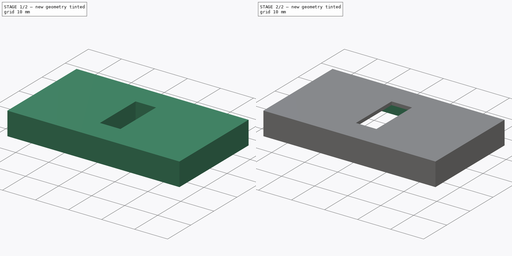
[diagram: build sequence overview — one tinted view per stage of 2, left to right]
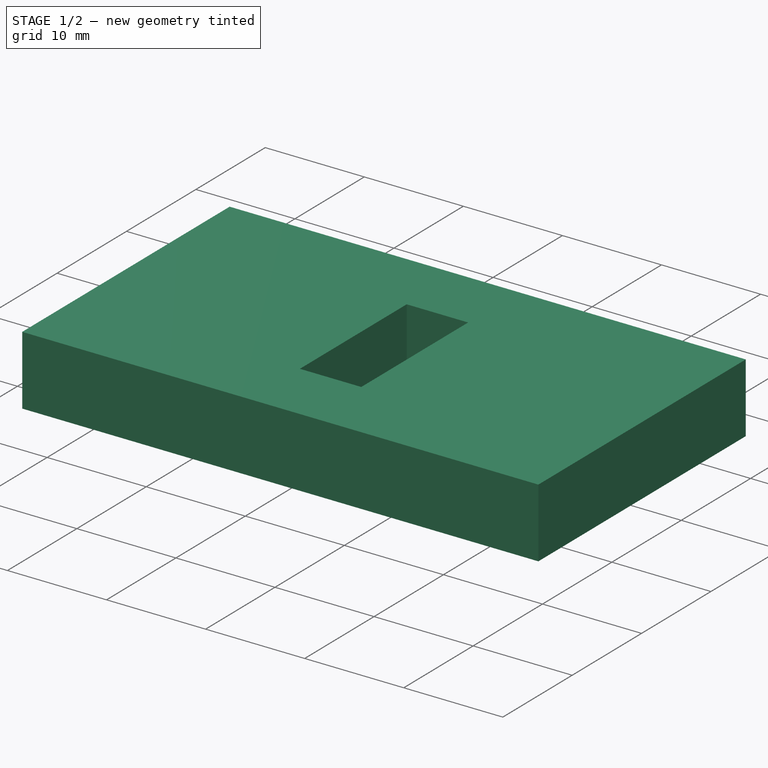
[diagram: stage 1 of 2 — iso view after this stage's code; geometry added in this stage tinted green]
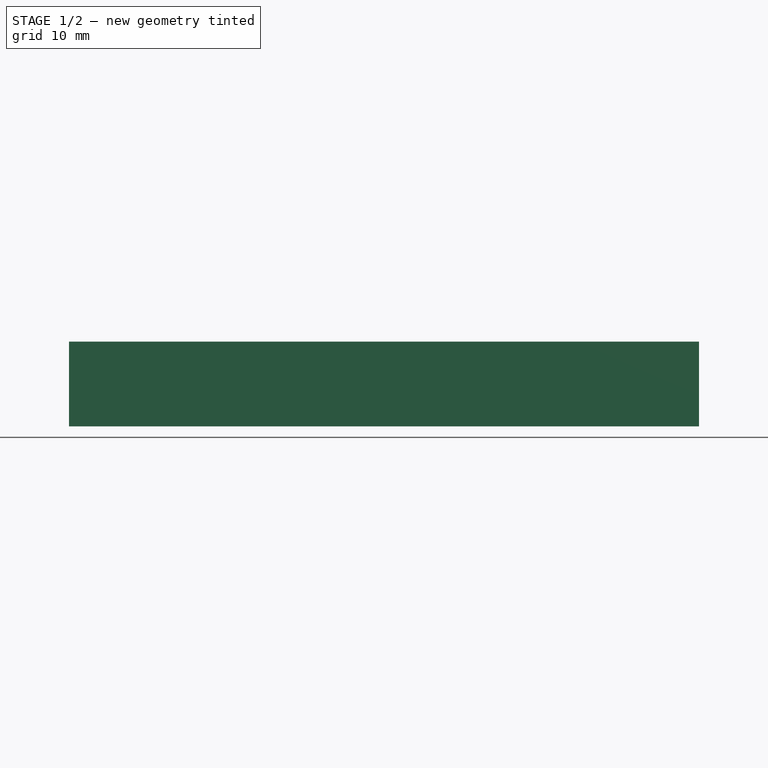
[diagram: stage 1 of 2 — front view after this stage's code; geometry added in this stage tinted green]
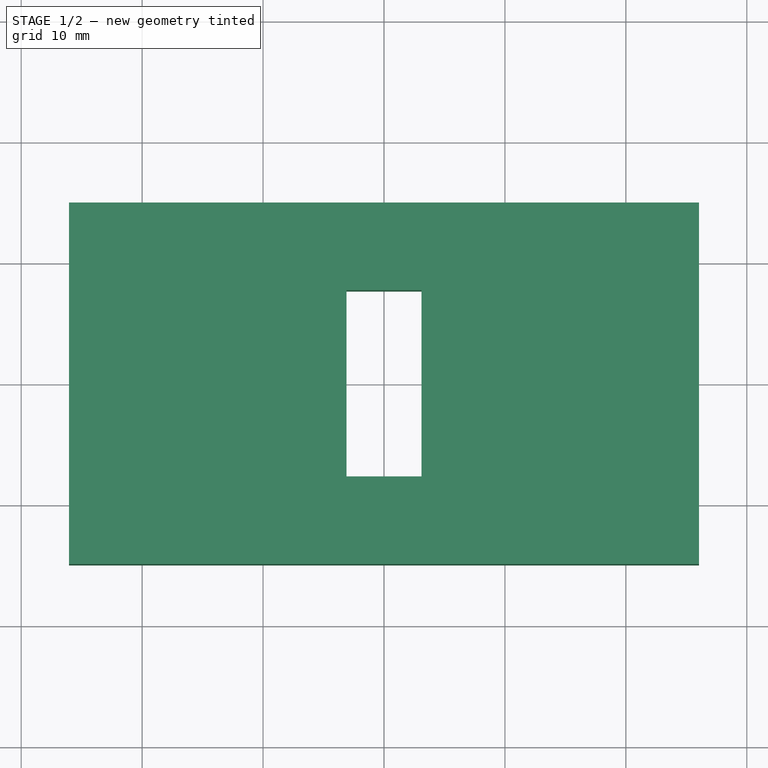
[diagram: stage 1 of 2 — top view after this stage's code; geometry added in this stage tinted green]
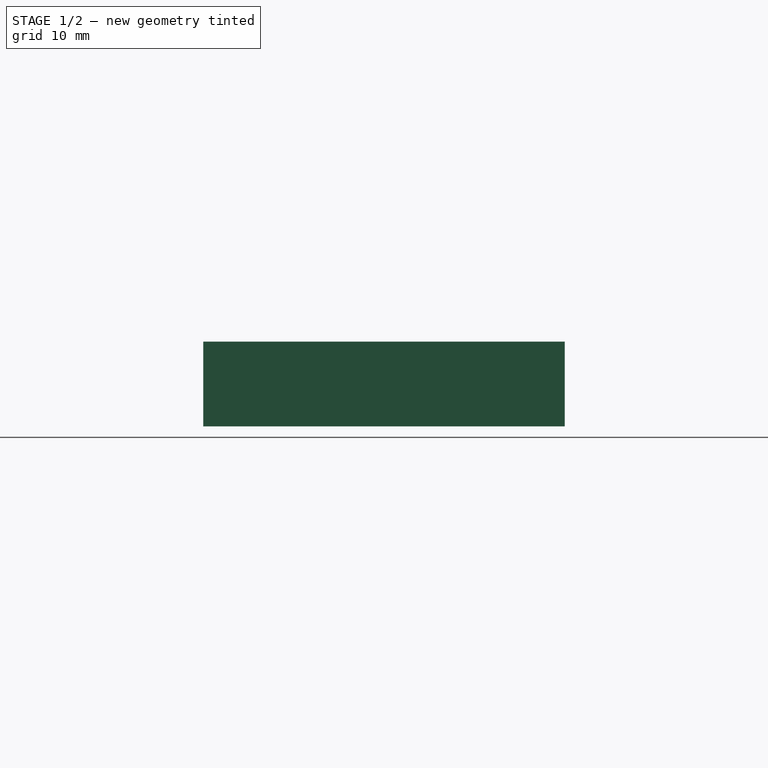
[diagram: stage 1 of 2 — right view after this stage's code; geometry added in this stage tinted green]
FCSTD DOCUMENT  (FreeCAD 0.18.4R)
Label: reset_unlock_button_cache
License: All rights reserved
LicenseURL: http://en.wikipedia.org/wiki/All_rights_reserved
objects: Sketcher::SketchObject×2, PartDesign::Pad×1, PartDesign::Pocket×1, PartDesign::Body×1
note: 7 computed .brp shape members not serialized (recipe doc carries the construction recipe); baked Part::Feature solids carry a one-line shape summary decoded from their .brp

FEATURE [Sketcher::SketchObject] Sketch
  MapMode = 5
  Support = -> [XY_Plane]
  sketch-geometry (8):
    g0: LineSegment StartX=-26.05 StartY=14.95 StartZ=0 EndX=26.05 EndY=14.95 EndZ=0
    g1: LineSegment StartX=26.05 StartY=14.95 StartZ=0 EndX=26.05 EndY=-14.95 EndZ=0
    g2: LineSegment StartX=26.05 StartY=-14.95 StartZ=0 EndX=-26.05 EndY=-14.95 EndZ=0
    g3: LineSegment StartX=-26.05 StartY=-14.95 StartZ=0 EndX=-26.05 EndY=14.95 EndZ=0
    g4: LineSegment StartX=-3.1 StartY=7.7 StartZ=0 EndX=3.1 EndY=7.7 EndZ=0
    g5: LineSegment StartX=3.1 StartY=7.7 StartZ=0 EndX=3.1 EndY=-7.7 EndZ=0
    g6: LineSegment StartX=3.1 StartY=-7.7 StartZ=0 EndX=-3.1 EndY=-7.7 EndZ=0
    g7: LineSegment StartX=-3.1 StartY=-7.7 StartZ=0 EndX=-3.1 EndY=7.7 EndZ=0
  constraints (20):
    c: Coincident(g0,g1)
    c: Coincident(g1,g2)
    c: Coincident(g2,g3)
    c: Coincident(g3,g0)
    c: Horizontal(g2)
    c: Vertical(g1)
    c: DistanceX(g0,g0) = 52.1
    c: DistanceY(g3,g3) = 29.9
    c: Symmetric(g0,g2,g-1)
    c: Symmetric(g0,g0,g-2)
    c: Coincident(g4,g5)
    c: Coincident(g5,g6)
    c: Coincident(g6,g7)
    c: Coincident(g7,g4)
    c: Horizontal(g6)
    c: Vertical(g5)
    c: DistanceX(g4,g4) = 6.2
    c: DistanceY(g7,g7) = 15.4
    c: Symmetric(g4,g6,g-1)
    c: Symmetric(g4,g4,g-2)
FEATURE [PartDesign::Pad] Pad
  Length = 7
  Length2 = 100
  Profile = -> Sketch
  Type = 0
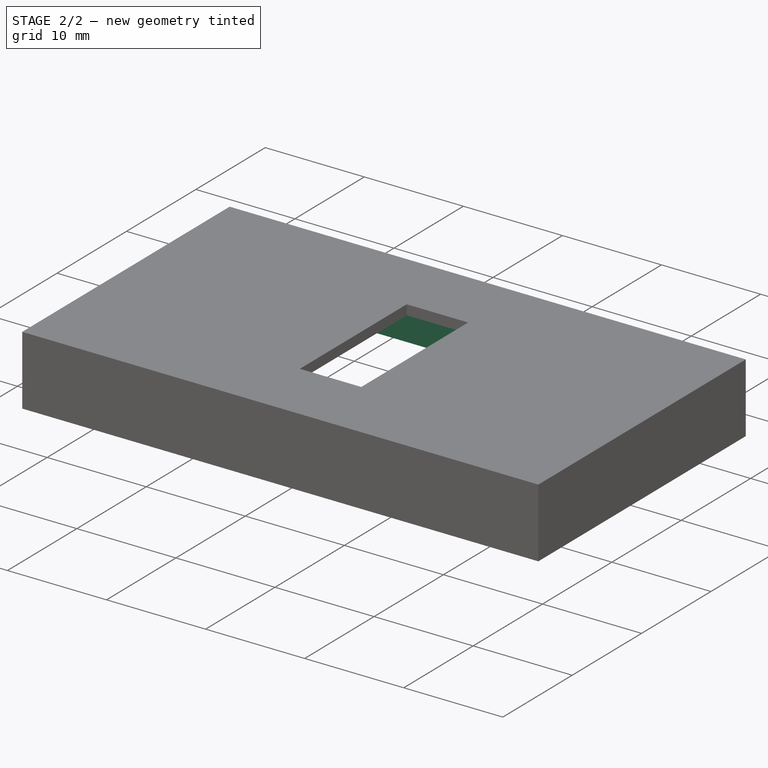
[diagram: stage 2 of 2 — iso view after this stage's code; geometry added in this stage tinted green]
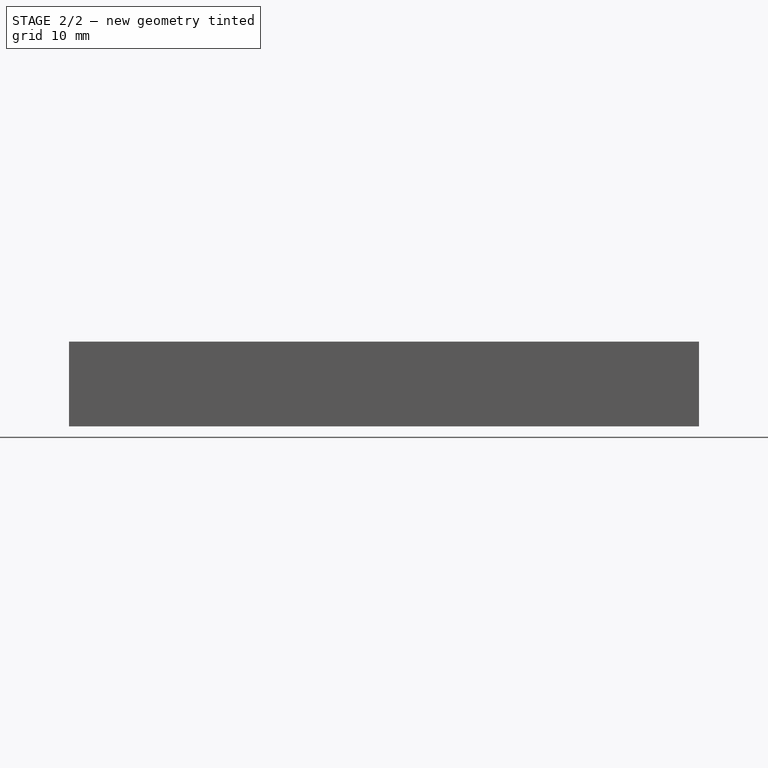
[diagram: stage 2 of 2 — front view after this stage's code; geometry added in this stage tinted green]
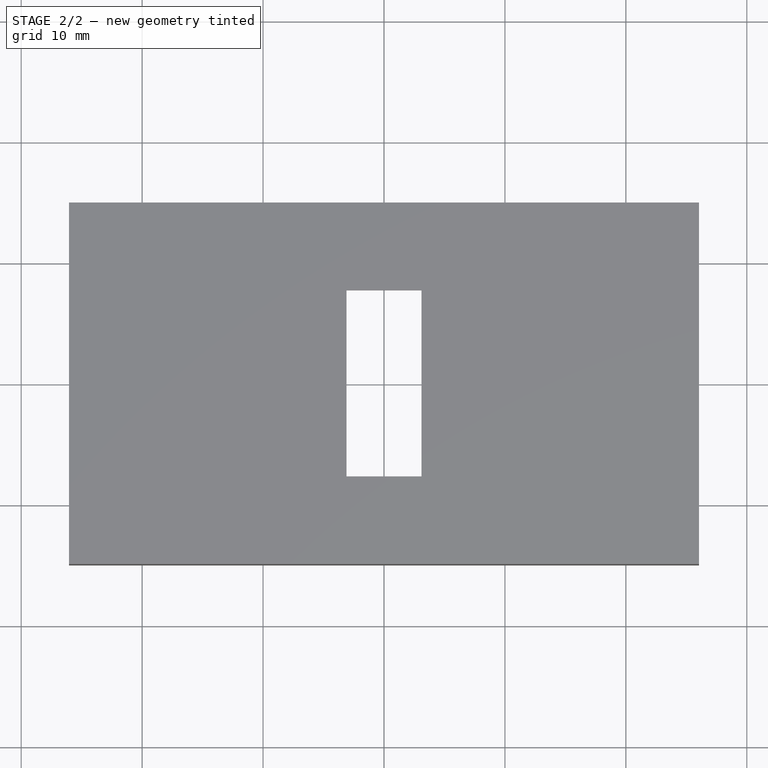
[diagram: stage 2 of 2 — top view after this stage's code; geometry added in this stage tinted green]
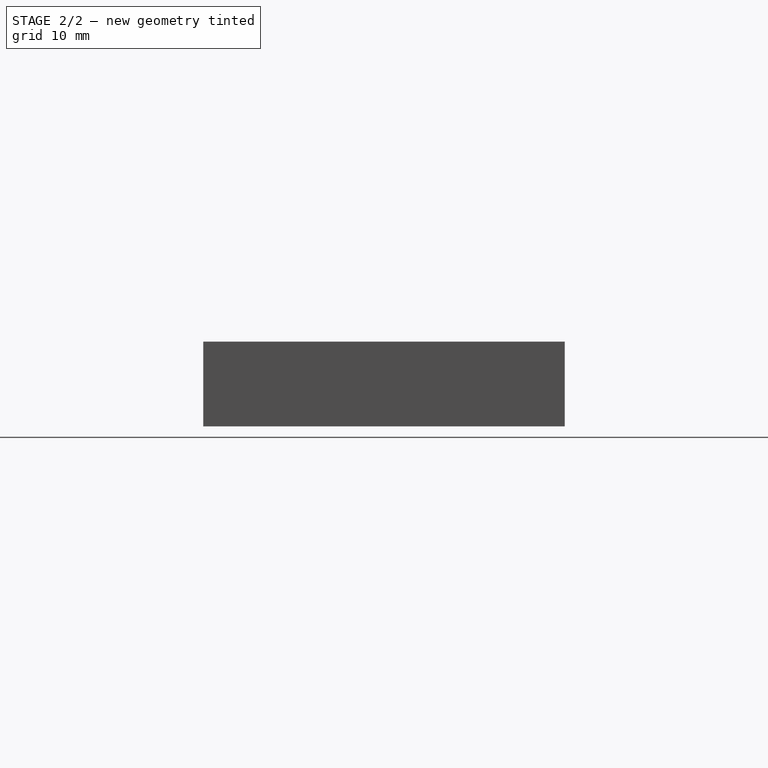
[diagram: stage 2 of 2 — right view after this stage's code; geometry added in this stage tinted green]
FEATURE [Sketcher::SketchObject] Sketch001
  ExternalGeometry = -> [Pad]
  MapMode = 5
  Placement = pos=(0,0,0) rot=(1,0,0;3.14159rad)
  Support = -> [Pad]
  sketch-geometry (4):
    g0: LineSegment StartX=-25.05 StartY=13.95 StartZ=0 EndX=25.05 EndY=13.95 EndZ=0
    g1: LineSegment StartX=25.05 StartY=13.95 StartZ=0 EndX=25.05 EndY=-13.95 EndZ=0
    g2: LineSegment StartX=25.05 StartY=-13.95 StartZ=0 EndX=-25.05 EndY=-13.95 EndZ=0
    g3: LineSegment StartX=-25.05 StartY=-13.95 StartZ=0 EndX=-25.05 EndY=13.95 EndZ=0
  constraints (12):
    c: Coincident(g0,g1)
    c: Coincident(g1,g2)
    c: Coincident(g2,g3)
    c: Coincident(g3,g0)
    c: Horizontal(g2)
    c: Vertical(g1)
    c: Symmetric(g0,g0,g-2)
    c: Symmetric(g0,g2,g-1)
    c: Distance(g-4) = 29.9
    c: DistanceY(g3,g3) = 27.9
    c: Distance(g-5) = 52.1
    c: DistanceX(g2,g2) = 50.1
FEATURE [PartDesign::Pocket] Pocket
  BaseFeature = -> Pad
  Length = 6
  Length2 = 100
  Profile = -> Sketch001
  Type = 0
FEATURE [PartDesign::Body] Body
  Group = -> [Sketch,Pad,Sketch001,Pocket]
  Origin = -> Origin
  Tip = -> Pocket
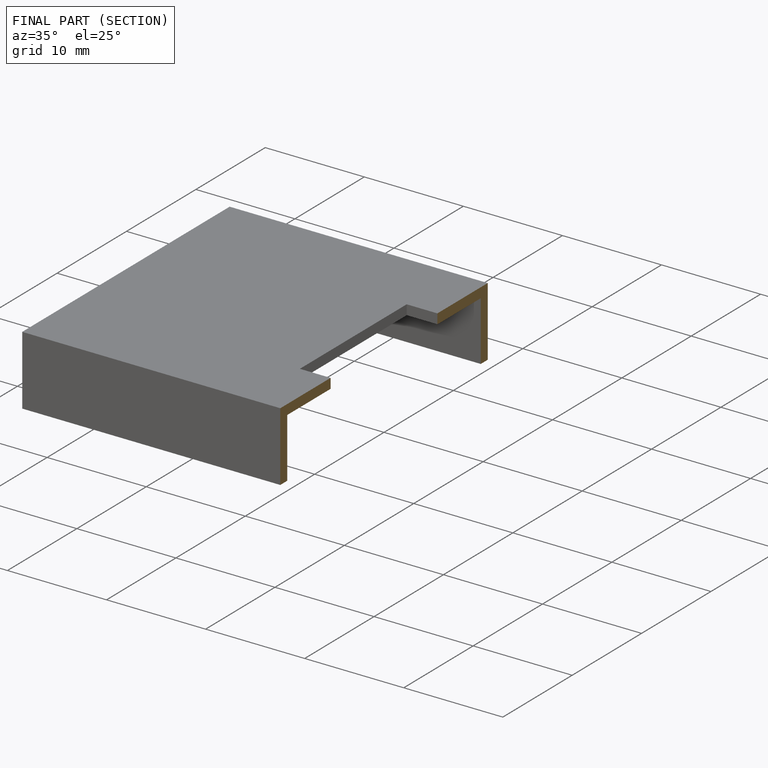
[diagram: finished part — half-section view (interior)]
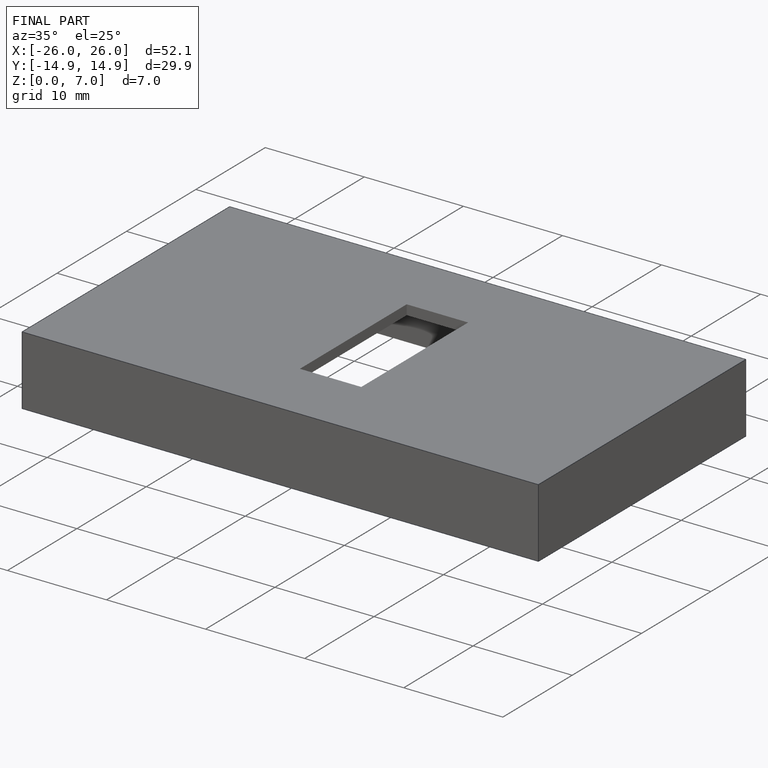
[diagram: finished part — iso view with bounding-box wireframe]
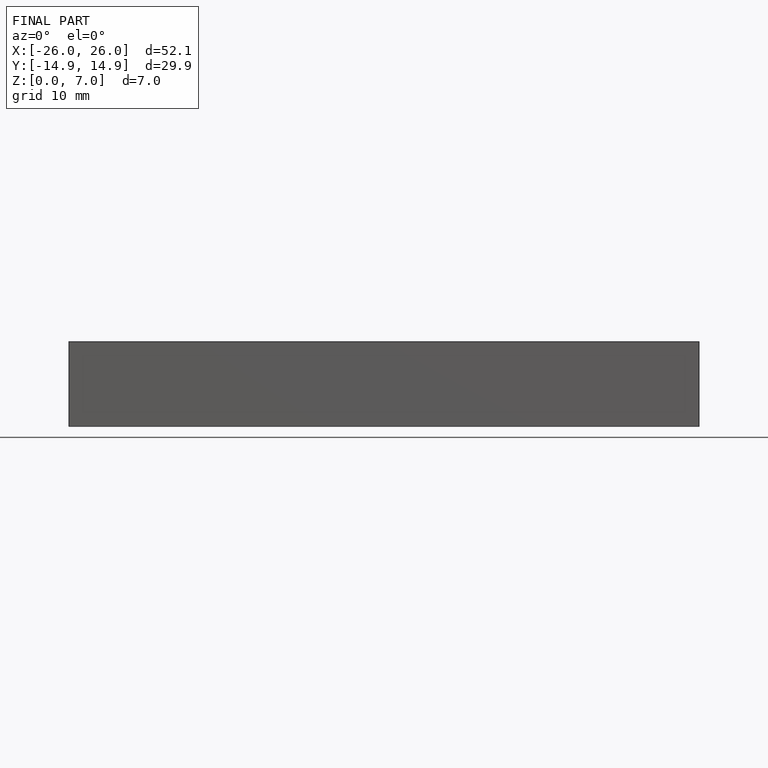
[diagram: finished part — front view with bounding-box wireframe]
